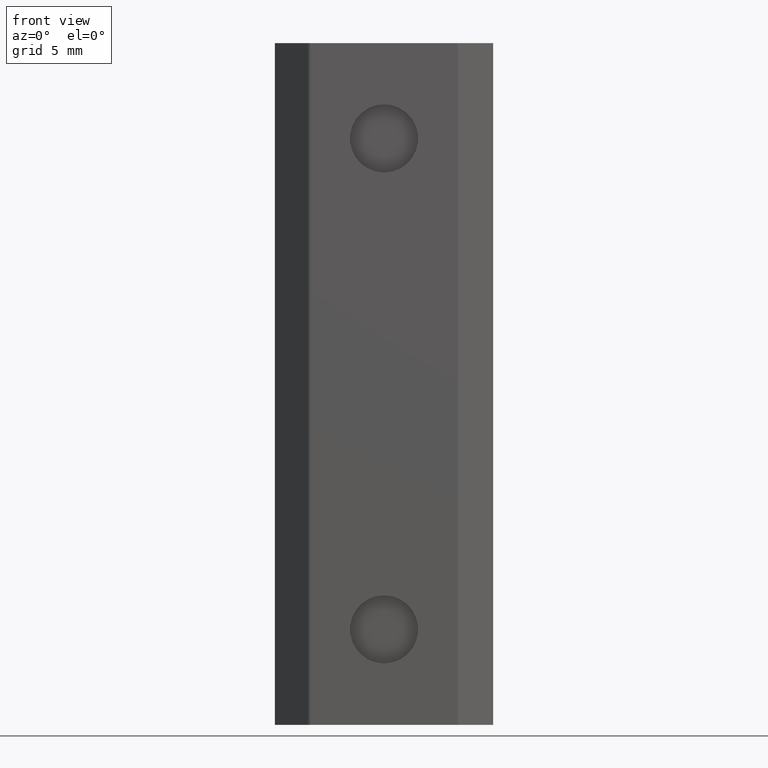
[diagram: clean part render]
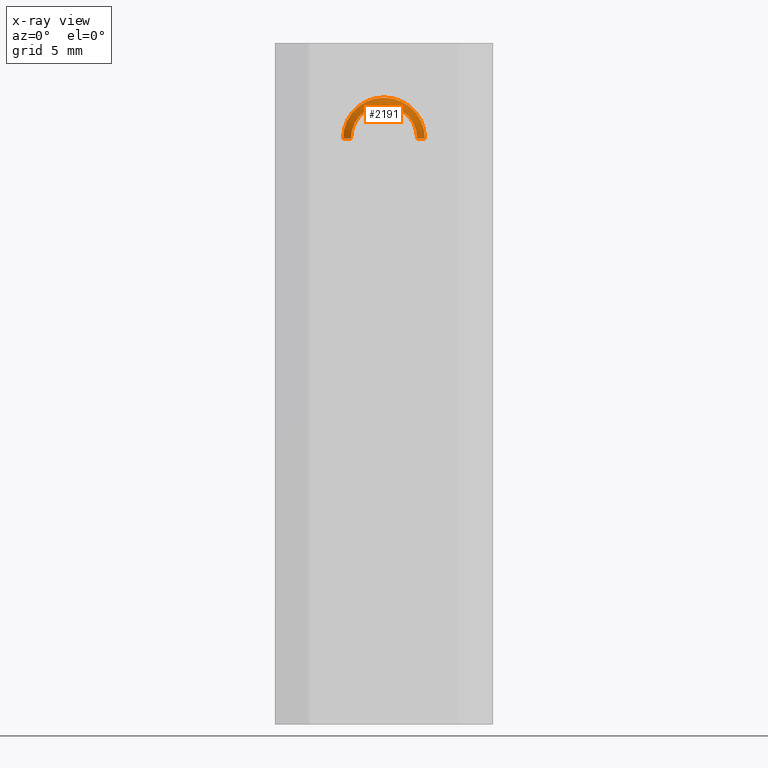
[diagram: x-ray — body ghosted, one internal face saturated and labeled with its STEP entity id]
A machine part, front view, then the same camera in x-ray: the body is ghosted and one INTERNAL B-rep face — a face not visible from any outside direction — is saturated and labeled: STEP entity #2191.
In plain terms, the highlighted conical surface has half-angle 60 deg.
Its self-contained STEP definition (entity closure, byte-faithful):
#137 = ORIENTED_EDGE ( 'NONE', *, *, #2009, .T. ) ;
#331 = DIRECTION ( 'NONE',  ( 0.0000000000000000000, 0.0000000000000000000, 1.000000000000000000 ) ) ;
#349 = VERTEX_POINT ( 'NONE', #3198 ) ;
#565 = ORIENTED_EDGE ( 'NONE', *, *, #2402, .T. ) ;
#633 = CARTESIAN_POINT ( 'NONE',  ( -1.643458614268820900E-026, -6.860000000017407700, 0.0000000000000000000 ) ) ;
#798 = VERTEX_POINT ( 'NONE', #2819 ) ;
#1006 = CONICAL_SURFACE ( 'NONE', #3841, 3.000000000042746300, 1.047197551177160100 ) ;
#1035 = LINE ( 'NONE', #3982, #3010 ) ;
#1036 = CARTESIAN_POINT ( 'NONE',  ( -1.484884243966166000E-016, -7.191976404784031600, 0.0000000000000000000 ) ) ;
#1061 = VECTOR ( 'NONE', #3361, 1000.000000000000100 ) ;
#1179 = CIRCLE ( 'NONE', #3526, 3.000000000042746300 ) ;
#1210 = VERTEX_POINT ( 'NONE', #3102 ) ;
#1276 = EDGE_LOOP ( 'NONE', ( #565, #137, #3209, #1307, #1371 ) ) ;
#1307 = ORIENTED_EDGE ( 'NONE', *, *, #1617, .T. ) ;
#1350 = CARTESIAN_POINT ( 'NONE',  ( -3.000000000042745400, -6.860000000017408600, 9.062922871275017900E-048 ) ) ;
#1371 = ORIENTED_EDGE ( 'NONE', *, *, #4330, .F. ) ;
#1403 = DIRECTION ( 'NONE',  ( -2.891205793253483000E-016, 1.000000000000000000, 2.089767734735625300E-032 ) ) ;
#1617 = EDGE_CURVE ( 'NONE', #798, #1681, #1179, .T. ) ;
#1681 = VERTEX_POINT ( 'NONE', #1350 ) ;
#1815 = CIRCLE ( 'NONE', #2018, 2.425000000000001200 ) ;
#1897 = AXIS2_PLACEMENT_3D ( 'NONE', #4386, #2275, #2327 ) ;
#1991 = CARTESIAN_POINT ( 'NONE',  ( -2.425000000000001200, -7.191976404784031600, -3.468767897469602100E-033 ) ) ;
#2009 = EDGE_CURVE ( 'NONE', #349, #1210, #3092, .T. ) ;
#2018 = AXIS2_PLACEMENT_3D ( 'NONE', #1036, #2023, #331 ) ;
#2023 = DIRECTION ( 'NONE',  ( 0.0000000000000000000, 1.000000000000000000, 0.0000000000000000000 ) ) ;
#2025 = DIRECTION ( 'NONE',  ( 1.445602896736305200E-016, -1.000000000000000000, -0.0000000000000000000 ) ) ;
#2191 = ADVANCED_FACE ( 'NONE', ( #2924 ), #1006, .T. ) ;
#2275 = DIRECTION ( 'NONE',  ( 1.445602896736305200E-016, -1.000000000000000000, -0.0000000000000000000 ) ) ;
#2327 = DIRECTION ( 'NONE',  ( -1.000000000000000000, 0.0000000000000000000, 0.0000000000000000000 ) ) ;
#2358 = VERTEX_POINT ( 'NONE', #1991 ) ;
#2402 = EDGE_CURVE ( 'NONE', #2358, #349, #1815, .T. ) ;
#2700 = CARTESIAN_POINT ( 'NONE',  ( -2.507721281718482300E-031, -6.860000000017406800, 1.812584574392381500E-047 ) ) ;
#2819 = CARTESIAN_POINT ( 'NONE',  ( 2.341821967610347800E-037, -6.860000000017407700, 3.000000000042746700 ) ) ;
#2924 = FACE_OUTER_BOUND ( 'NONE', #1276, .T. ) ;
#3010 = VECTOR ( 'NONE', #3968, 1000.000000000000000 ) ;
#3092 = LINE ( 'NONE', #4345, #1061 ) ;
#3102 = CARTESIAN_POINT ( 'NONE',  ( 3.000000000042744000, -6.860000000017406800, 3.673940397494406200E-016 ) ) ;
#3142 = EDGE_CURVE ( 'NONE', #1210, #798, #3779, .T. ) ;
#3198 = CARTESIAN_POINT ( 'NONE',  ( 2.425000000000001200, -7.191976404784031600, 3.321854442713371800E-016 ) ) ;
#3209 = ORIENTED_EDGE ( 'NONE', *, *, #3142, .T. ) ;
#3361 = DIRECTION ( 'NONE',  ( 0.8660254037747195900, 0.5000000000168337600, 1.060575238713004700E-016 ) ) ;
#3526 = AXIS2_PLACEMENT_3D ( 'NONE', #633, #2025, #3742 ) ;
#3742 = DIRECTION ( 'NONE',  ( -1.000000000000000000, 0.0000000000000000000, 0.0000000000000000000 ) ) ;
#3779 = CIRCLE ( 'NONE', #1897, 3.000000000042746300 ) ;
#3841 = AXIS2_PLACEMENT_3D ( 'NONE', #2700, #1403, #4165 ) ;
#3968 = DIRECTION ( 'NONE',  ( -0.8660254037747199300, 0.5000000000168333100, 1.044883867402990900E-032 ) ) ;
#3982 = CARTESIAN_POINT ( 'NONE',  ( -3.000000000042746300, -6.860000000017407700, 1.812584574392381500E-047 ) ) ;
#4165 = DIRECTION ( 'NONE',  ( -1.000000000000000000, -2.891205793253482500E-016, 0.0000000000000000000 ) ) ;
#4330 = EDGE_CURVE ( 'NONE', #2358, #1681, #1035, .T. ) ;
#4345 = CARTESIAN_POINT ( 'NONE',  ( 3.000000000042746300, -6.860000000017406000, 3.673940397494408700E-016 ) ) ;
#4386 = CARTESIAN_POINT ( 'NONE',  ( -1.643458614268820900E-026, -6.860000000017407700, 0.0000000000000000000 ) ) ;